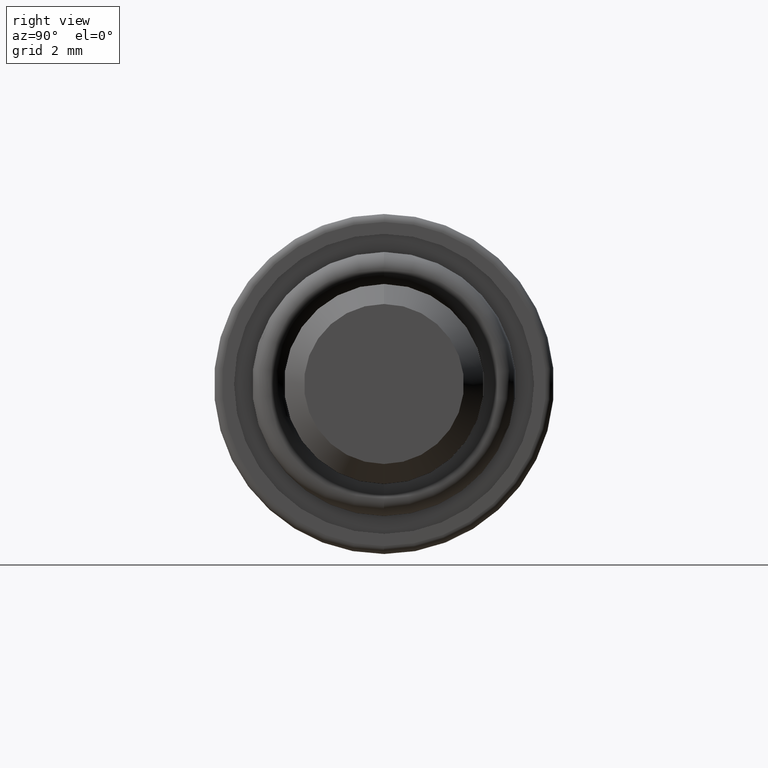
[diagram: clean part render]
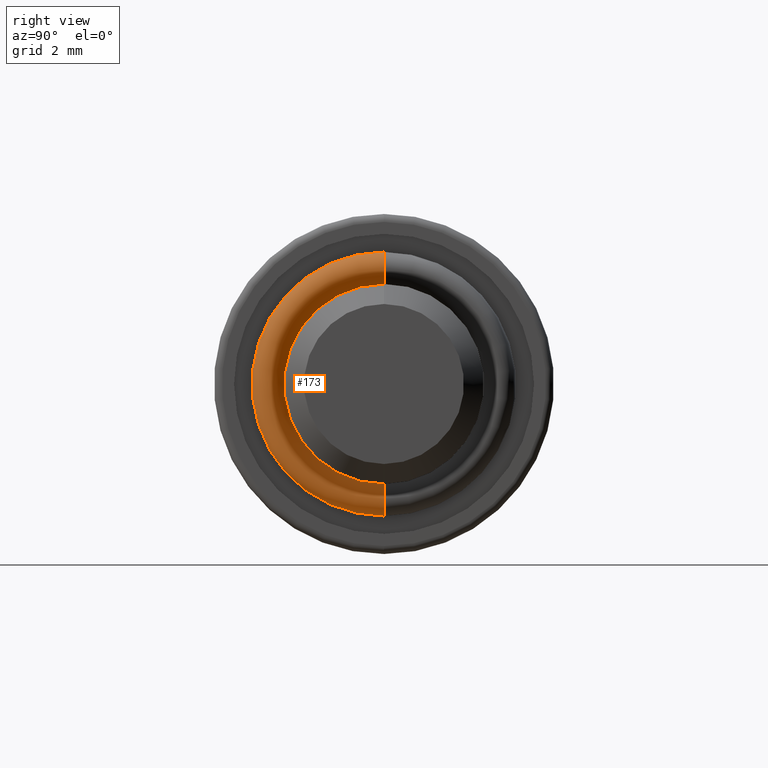
[diagram: same view with one face highlighted and labeled with its STEP entity id]
A machine part, right view. The second image highlights one B-rep face of the part: STEP entity #173.
In plain terms, the highlighted toroidal blend (fillet) surface has major radius 2.9 mm and minor (blend) radius 0.4 mm.
Its self-contained STEP definition (entity closure, byte-faithful):
#8 = DIRECTION ( 'NONE',  ( -0.0000000000000000000, -1.000000000000000000, -0.0000000000000000000 ) ) ;
#17 = AXIS2_PLACEMENT_3D ( 'NONE', #297, #723, #612 ) ;
#26 = DIRECTION ( 'NONE',  ( 0.0000000000000000000, 0.0000000000000000000, -1.000000000000000000 ) ) ;
#39 = AXIS2_PLACEMENT_3D ( 'NONE', #502, #627, #703 ) ;
#83 = CARTESIAN_POINT ( 'NONE',  ( -0.05000000000000007200, 0.0000000000000000000, -2.499999999999999600 ) ) ;
#90 = CARTESIAN_POINT ( 'NONE',  ( -0.05000000000000002400, 4.041334437186265500E-016, 3.299999999999999800 ) ) ;
#91 = VERTEX_POINT ( 'NONE', #210 ) ;
#109 = CIRCLE ( 'NONE', #654, 2.499999999999999600 ) ;
#115 = AXIS2_PLACEMENT_3D ( 'NONE', #586, #8, #26 ) ;
#121 = DIRECTION ( 'NONE',  ( 0.0000000000000000000, 0.0000000000000000000, -1.000000000000000000 ) ) ;
#145 = TOROIDAL_SURFACE ( 'NONE', #17, 2.899999999999999900, 0.4000000000000001300 ) ;
#150 = CARTESIAN_POINT ( 'NONE',  ( -0.05000000000000002400, 3.551475717527323800E-016, 2.899999999999999900 ) ) ;
#173 = ADVANCED_FACE ( 'NONE', ( #806 ), #145, .T. ) ;
#190 = CIRCLE ( 'NONE', #334, 0.4000000000000001900 ) ;
#210 = CARTESIAN_POINT ( 'NONE',  ( -0.05000000000000007200, 3.061616997868382600E-016, 2.499999999999999600 ) ) ;
#221 = CIRCLE ( 'NONE', #39, 3.299999999999999800 ) ;
#244 = VERTEX_POINT ( 'NONE', #83 ) ;
#272 = CARTESIAN_POINT ( 'NONE',  ( -0.05000000000000007200, 0.0000000000000000000, 0.0000000000000000000 ) ) ;
#273 = VERTEX_POINT ( 'NONE', #366 ) ;
#287 = EDGE_CURVE ( 'NONE', #273, #244, #683, .T. ) ;
#297 = CARTESIAN_POINT ( 'NONE',  ( -0.05000000000000002400, 0.0000000000000000000, 0.0000000000000000000 ) ) ;
#328 = ORIENTED_EDGE ( 'NONE', *, *, #615, .T. ) ;
#334 = AXIS2_PLACEMENT_3D ( 'NONE', #150, #580, #709 ) ;
#351 = DIRECTION ( 'NONE',  ( 1.000000000000000000, -0.0000000000000000000, -0.0000000000000000000 ) ) ;
#366 = CARTESIAN_POINT ( 'NONE',  ( -0.05000000000000002400, 0.0000000000000000000, -3.299999999999999800 ) ) ;
#435 = EDGE_LOOP ( 'NONE', ( #661, #328, #573, #572 ) ) ;
#445 = EDGE_CURVE ( 'NONE', #808, #91, #190, .T. ) ;
#502 = CARTESIAN_POINT ( 'NONE',  ( -0.05000000000000002400, 0.0000000000000000000, 0.0000000000000000000 ) ) ;
#509 = EDGE_CURVE ( 'NONE', #91, #244, #109, .T. ) ;
#572 = ORIENTED_EDGE ( 'NONE', *, *, #509, .F. ) ;
#573 = ORIENTED_EDGE ( 'NONE', *, *, #287, .T. ) ;
#580 = DIRECTION ( 'NONE',  ( 0.0000000000000000000, 1.000000000000000000, -1.224646799147353200E-016 ) ) ;
#586 = CARTESIAN_POINT ( 'NONE',  ( -0.05000000000000002400, 0.0000000000000000000, -2.899999999999999900 ) ) ;
#612 = DIRECTION ( 'NONE',  ( 0.0000000000000000000, 0.0000000000000000000, -1.000000000000000000 ) ) ;
#615 = EDGE_CURVE ( 'NONE', #808, #273, #221, .T. ) ;
#627 = DIRECTION ( 'NONE',  ( 1.000000000000000000, -0.0000000000000000000, -0.0000000000000000000 ) ) ;
#654 = AXIS2_PLACEMENT_3D ( 'NONE', #272, #351, #121 ) ;
#661 = ORIENTED_EDGE ( 'NONE', *, *, #445, .F. ) ;
#683 = CIRCLE ( 'NONE', #115, 0.4000000000000001900 ) ;
#703 = DIRECTION ( 'NONE',  ( 0.0000000000000000000, 0.0000000000000000000, -1.000000000000000000 ) ) ;
#709 = DIRECTION ( 'NONE',  ( 0.0000000000000000000, 1.224646799147353200E-016, 1.000000000000000000 ) ) ;
#723 = DIRECTION ( 'NONE',  ( 1.000000000000000000, -0.0000000000000000000, -0.0000000000000000000 ) ) ;
#806 = FACE_OUTER_BOUND ( 'NONE', #435, .T. ) ;
#808 = VERTEX_POINT ( 'NONE', #90 ) ;